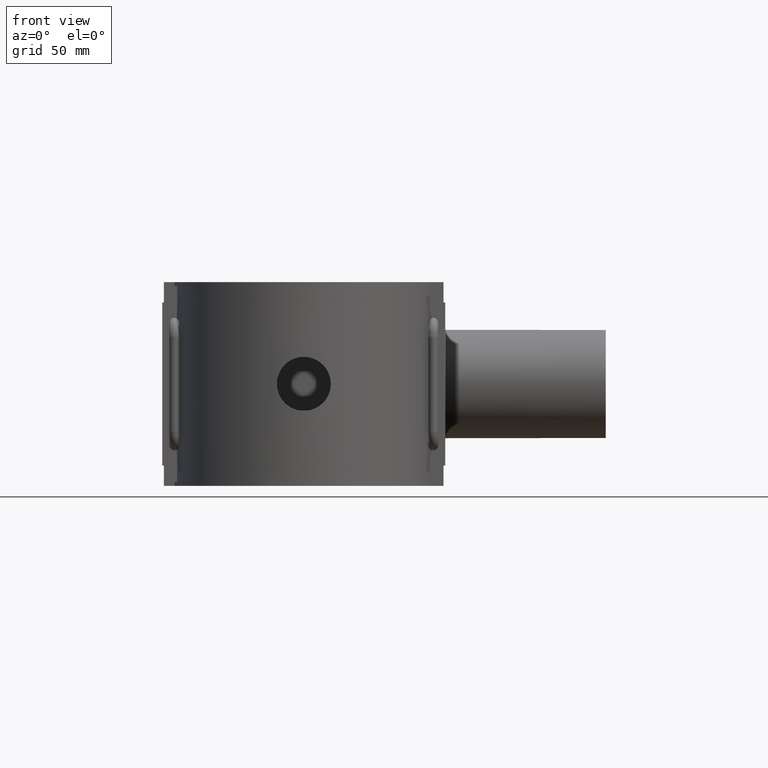
[diagram: clean part render]
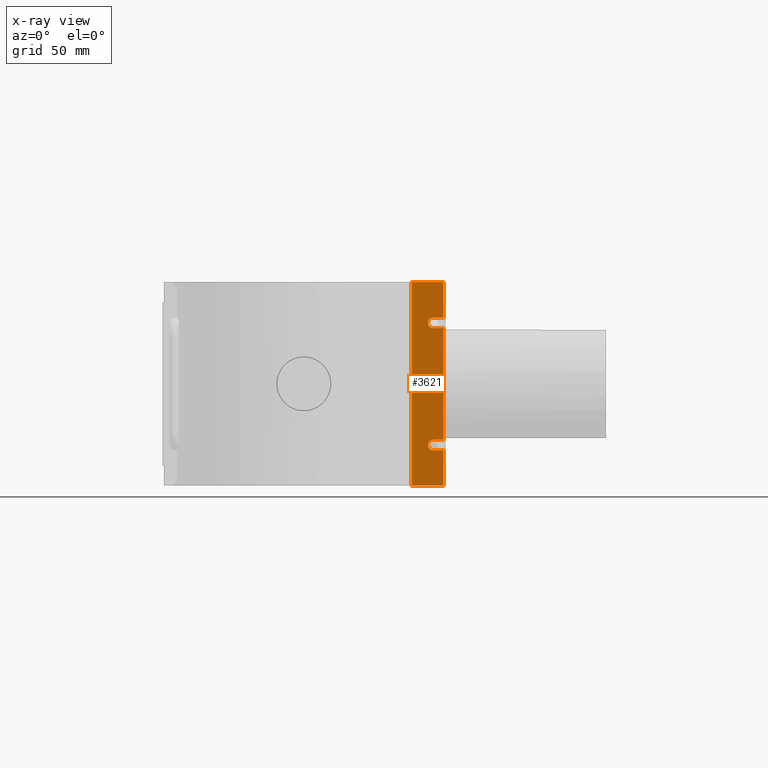
[diagram: x-ray — body ghosted, one internal face saturated and labeled with its STEP entity id]
A machine part, front view, then the same camera in x-ray: the body is ghosted and one INTERNAL B-rep face — a face not visible from any outside direction — is saturated and labeled: STEP entity #3621.
In plain terms, the highlighted planar face has unit normal (0, -1, 0).
Its self-contained STEP definition (entity closure, byte-faithful):
#308=LINE('',#7418,#607);
#314=LINE('',#7439,#613);
#317=LINE('',#7446,#616);
#318=LINE('',#7451,#617);
#321=LINE('',#7455,#620);
#324=LINE('',#7463,#623);
#325=LINE('',#7464,#624);
#326=LINE('',#7467,#625);
#331=LINE('',#7476,#630);
#332=LINE('',#7479,#631);
#334=LINE('',#7482,#633);
#335=LINE('',#7485,#634);
#336=LINE('',#7487,#635);
#337=LINE('',#7488,#636);
#607=VECTOR('',#4820,0.0243346729777638);
#613=VECTOR('',#4846,0.0243346729777638);
#616=VECTOR('',#4855,6.00000000000001);
#617=VECTOR('',#4862,6.00000000000001);
#620=VECTOR('',#4865,0.0243346729777638);
#623=VECTOR('',#4874,6.00000000000001);
#624=VECTOR('',#4875,0.0243346729777638);
#625=VECTOR('',#4878,6.00000000000002);
#630=VECTOR('',#4887,20.6);
#631=VECTOR('',#4890,20.6);
#633=VECTOR('',#4894,64.8);
#634=VECTOR('',#4897,18.5000200000032);
#635=VECTOR('',#4898,118.);
#636=VECTOR('',#4899,18.5000200000032);
#1029=FACE_OUTER_BOUND('',#1293,.T.);
#1293=EDGE_LOOP('',(#3212,#3213,#3214,#3215,#3216,#3217,#3218,#3219,#3220,
#3221,#3222,#3223,#3224,#3225,#3226,#3227));
#1427=CIRCLE('',#3931,3.);
#1431=CIRCLE('',#3945,3.);
#1746=VERTEX_POINT('',#7388);
#1747=VERTEX_POINT('',#7390);
#1749=VERTEX_POINT('',#7395);
#1750=VERTEX_POINT('',#7397);
#1753=VERTEX_POINT('',#7416);
#1755=VERTEX_POINT('',#7423);
#1758=VERTEX_POINT('',#7438);
#1759=VERTEX_POINT('',#7444);
#1760=VERTEX_POINT('',#7450);
#1761=VERTEX_POINT('',#7453);
#1763=VERTEX_POINT('',#7461);
#1764=VERTEX_POINT('',#7466);
#1766=VERTEX_POINT('',#7474);
#1767=VERTEX_POINT('',#7478);
#1768=VERTEX_POINT('',#7484);
#1769=VERTEX_POINT('',#7486);
#2228=EDGE_CURVE('',#1747,#1753,#308,.T.);
#2232=EDGE_CURVE('',#1753,#1755,#1427,.T.);
#2238=EDGE_CURVE('',#1758,#1749,#314,.T.);
#2242=EDGE_CURVE('',#1749,#1759,#317,.T.);
#2244=EDGE_CURVE('',#1760,#1750,#318,.T.);
#2247=EDGE_CURVE('',#1750,#1761,#321,.T.);
#2248=EDGE_CURVE('',#1761,#1758,#1431,.T.);
#2251=EDGE_CURVE('',#1746,#1763,#324,.T.);
#2252=EDGE_CURVE('',#1755,#1746,#325,.T.);
#2253=EDGE_CURVE('',#1764,#1747,#326,.T.);
#2258=EDGE_CURVE('',#1766,#1763,#331,.T.);
#2259=EDGE_CURVE('',#1760,#1767,#332,.T.);
#2261=EDGE_CURVE('',#1764,#1759,#334,.T.);
#2262=EDGE_CURVE('',#1768,#1766,#335,.T.);
#2263=EDGE_CURVE('',#1769,#1768,#336,.T.);
#2264=EDGE_CURVE('',#1767,#1769,#337,.T.);
#3212=ORIENTED_EDGE('',*,*,#2238,.T.);
#3213=ORIENTED_EDGE('',*,*,#2242,.T.);
#3214=ORIENTED_EDGE('',*,*,#2261,.F.);
#3215=ORIENTED_EDGE('',*,*,#2253,.T.);
#3216=ORIENTED_EDGE('',*,*,#2228,.T.);
#3217=ORIENTED_EDGE('',*,*,#2232,.T.);
#3218=ORIENTED_EDGE('',*,*,#2252,.T.);
#3219=ORIENTED_EDGE('',*,*,#2251,.T.);
#3220=ORIENTED_EDGE('',*,*,#2258,.F.);
#3221=ORIENTED_EDGE('',*,*,#2262,.F.);
#3222=ORIENTED_EDGE('',*,*,#2263,.F.);
#3223=ORIENTED_EDGE('',*,*,#2264,.F.);
#3224=ORIENTED_EDGE('',*,*,#2259,.F.);
#3225=ORIENTED_EDGE('',*,*,#2244,.T.);
#3226=ORIENTED_EDGE('',*,*,#2247,.T.);
#3227=ORIENTED_EDGE('',*,*,#2248,.T.);
#3413=PLANE('',#3952);
#3621=ADVANCED_FACE('',(#1029),#3413,.F.);
#3931=AXIS2_PLACEMENT_3D('',#7425,#4828,#4829);
#3945=AXIS2_PLACEMENT_3D('',#7457,#4868,#4869);
#3952=AXIS2_PLACEMENT_3D('',#7483,#4895,#4896);
#4820=DIRECTION('',(-1.,-2.14163392095902E-19,0.));
#4828=DIRECTION('center_axis',(2.14163392095902E-19,-1.,0.));
#4829=DIRECTION('ref_axis',(1.,0.,0.));
#4846=DIRECTION('',(1.,2.14163392095902E-19,0.));
#4855=DIRECTION('',(1.,2.14163392095902E-19,0.));
#4862=DIRECTION('',(-1.,-2.14163392095902E-19,7.37158929503088E-16));
#4865=DIRECTION('',(-1.,-2.14163392095902E-19,7.37158929503088E-16));
#4868=DIRECTION('center_axis',(2.14163392095902E-19,-1.,0.));
#4869=DIRECTION('ref_axis',(1.,0.,0.));
#4874=DIRECTION('',(1.,2.14163392095902E-19,0.));
#4875=DIRECTION('',(1.,2.14163392095902E-19,0.));
#4878=DIRECTION('',(-1.,-2.14163392095902E-19,0.));
#4887=DIRECTION('',(0.,0.,1.));
#4890=DIRECTION('',(0.,0.,1.));
#4894=DIRECTION('',(0.,0.,1.));
#4895=DIRECTION('center_axis',(2.14163392095902E-19,-1.,0.));
#4896=DIRECTION('ref_axis',(1.,0.,0.));
#4897=DIRECTION('',(1.,2.14163392095902E-19,0.));
#4898=DIRECTION('',(0.,0.,-1.));
#4899=DIRECTION('',(-1.,-2.14163392095902E-19,0.));
#7388=CARTESIAN_POINT('',(75.,-0.0500000000000078,-38.4));
#7390=CARTESIAN_POINT('',(75.,-0.0500000000000078,-32.4));
#7395=CARTESIAN_POINT('',(75.,-0.0500000000000078,32.4));
#7397=CARTESIAN_POINT('',(75.,-0.0500000000000078,38.4));
#7416=CARTESIAN_POINT('',(74.9756653270222,-0.0500000000000078,-32.4));
#7418=CARTESIAN_POINT('',(-3.01216733648888,-0.0500000000000078,-32.4));
#7423=CARTESIAN_POINT('',(74.9756653270222,-0.0500000000000078,-38.4));
#7425=CARTESIAN_POINT('Origin',(74.9756653270222,-0.0500000000000078,-35.4));
#7438=CARTESIAN_POINT('',(74.9756653270222,-0.0500000000000078,32.4));
#7439=CARTESIAN_POINT('',(-1.66779741594684E-18,-0.0500000000000078,32.4));
#7444=CARTESIAN_POINT('',(81.,-0.0500000000000078,32.4));
#7446=CARTESIAN_POINT('',(-1.66779741594684E-18,-0.0500000000000078,32.4));
#7450=CARTESIAN_POINT('',(81.,-0.0500000000000078,38.4));
#7451=CARTESIAN_POINT('',(-3.01216733648885,-0.0500000000000078,38.4));
#7453=CARTESIAN_POINT('',(74.9756653270222,-0.0500000000000078,38.4));
#7455=CARTESIAN_POINT('',(-3.01216733648885,-0.0500000000000078,38.4));
#7457=CARTESIAN_POINT('Origin',(74.9756653270222,-0.0500000000000078,35.4));
#7461=CARTESIAN_POINT('',(81.,-0.0500000000000078,-38.4));
#7463=CARTESIAN_POINT('',(-1.66779741594684E-18,-0.0500000000000078,-38.4));
#7464=CARTESIAN_POINT('',(-1.66779741594684E-18,-0.0500000000000078,-38.4));
#7466=CARTESIAN_POINT('',(81.,-0.0500000000000078,-32.4));
#7467=CARTESIAN_POINT('',(-3.01216733648888,-0.0500000000000078,-32.4));
#7474=CARTESIAN_POINT('',(81.,-0.0500000000000078,-59.));
#7476=CARTESIAN_POINT('',(81.,-0.0500000000000078,-29.5));
#7478=CARTESIAN_POINT('',(81.,-0.0500000000000078,59.));
#7479=CARTESIAN_POINT('',(81.,-0.0500000000000078,-29.5));
#7482=CARTESIAN_POINT('',(81.,-0.0500000000000078,-29.5));
#7483=CARTESIAN_POINT('Origin',(-81.,-0.0500000000000078,-59.));
#7484=CARTESIAN_POINT('',(62.4999799999968,-0.0500000000000078,-59.));
#7485=CARTESIAN_POINT('',(-79.4812257877641,-0.0500000000000078,-59.));
#7486=CARTESIAN_POINT('',(62.4999799999968,-0.0500000000000078,59.));
#7487=CARTESIAN_POINT('',(62.4999799999968,-0.0500000000000078,0.));
#7488=CARTESIAN_POINT('',(-79.4812257877641,-0.0500000000000078,59.));